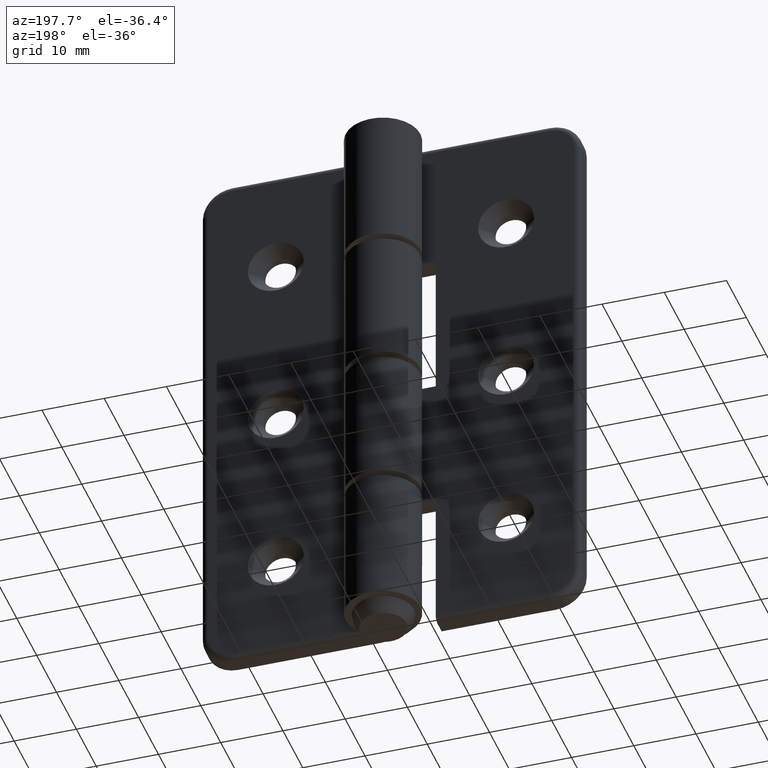
[diagram: clean part render]
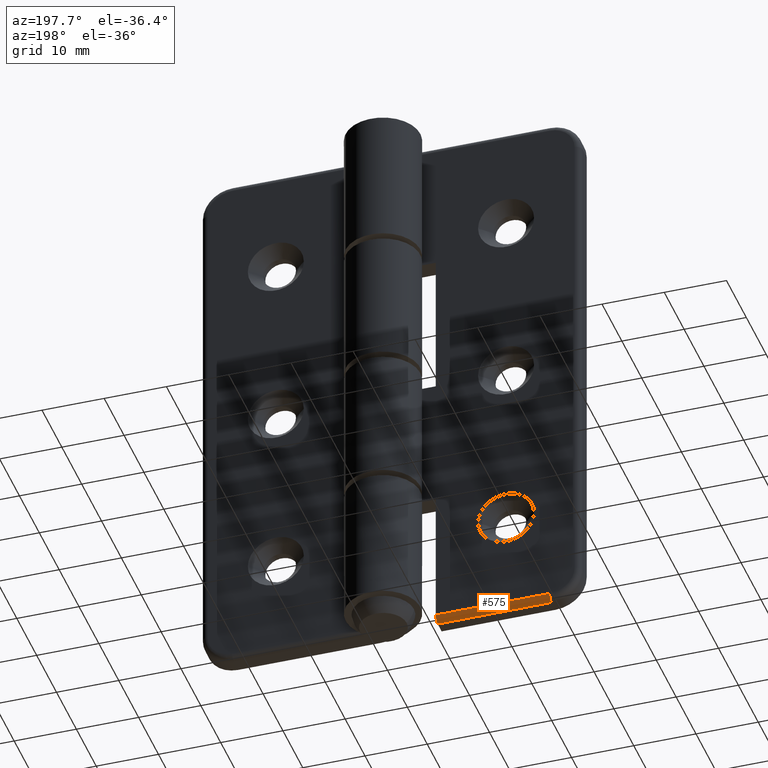
[diagram: same view with one face highlighted and labeled with its STEP entity id]
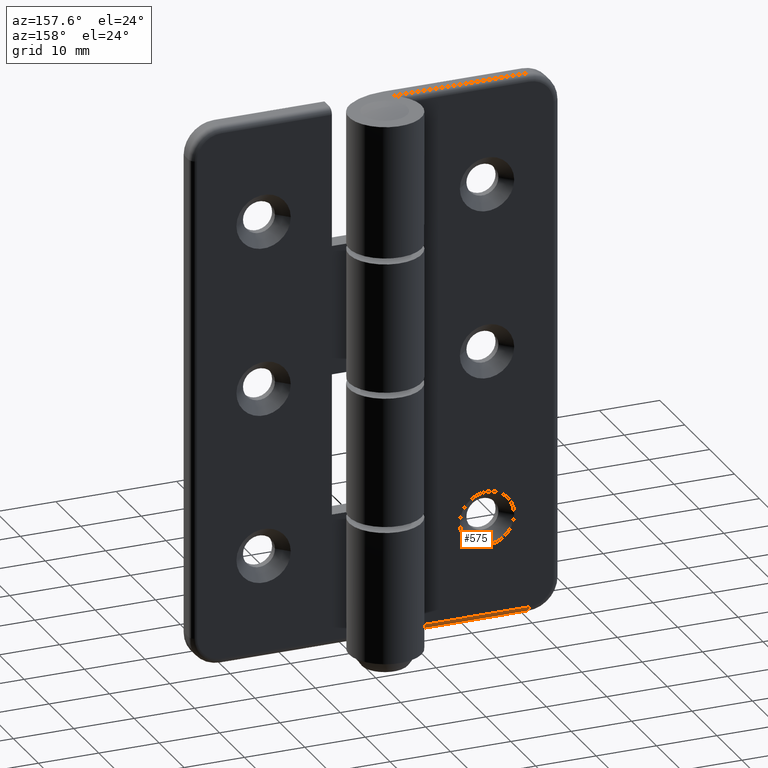
[diagram: same view with one face highlighted and labeled with its STEP entity id]
A machine part, auxiliary view. The second image highlights one B-rep face of the part: STEP entity #575.
A second angle (auxiliary view) of the same face is appended — the face is thin or edge-on in the first view.
In plain terms, the highlighted cylindrical surface (edge-blend (fillet) strip) has radius 1 mm, axis along (1, 0, 0).
Its self-contained STEP definition (entity closure, byte-faithful):
#66=LINE('',#963,#99);
#67=LINE('',#966,#100);
#99=VECTOR('',#765,18.3093034241836);
#100=VECTOR('',#768,18.3093034241836);
#123=CYLINDRICAL_SURFACE('',#632,1.);
#166=FACE_OUTER_BOUND('',#210,.T.);
#210=EDGE_LOOP('',(#465,#466,#467,#468));
#252=CIRCLE('',#615,1.);
#262=CIRCLE('',#633,1.);
#291=VERTEX_POINT('',#894);
#292=VERTEX_POINT('',#895);
#313=VERTEX_POINT('',#962);
#314=VERTEX_POINT('',#964);
#345=EDGE_CURVE('',#291,#292,#252,.T.);
#374=EDGE_CURVE('',#291,#313,#66,.T.);
#375=EDGE_CURVE('',#313,#314,#262,.T.);
#376=EDGE_CURVE('',#314,#292,#67,.T.);
#465=ORIENTED_EDGE('',*,*,#345,.F.);
#466=ORIENTED_EDGE('',*,*,#374,.T.);
#467=ORIENTED_EDGE('',*,*,#375,.T.);
#468=ORIENTED_EDGE('',*,*,#376,.T.);
#575=ADVANCED_FACE('',(#166),#123,.T.);
#615=AXIS2_PLACEMENT_3D('',#896,#711,#712);
#632=AXIS2_PLACEMENT_3D('',#961,#763,#764);
#633=AXIS2_PLACEMENT_3D('',#965,#766,#767);
#711=DIRECTION('center_axis',(-1.,4.44089209850063E-15,-4.44089209850064E-15));
#712=DIRECTION('ref_axis',(4.44089209850063E-15,1.,0.));
#763=DIRECTION('center_axis',(1.,0.,0.));
#764=DIRECTION('ref_axis',(0.,0.707106781186555,-0.70710678118654));
#765=DIRECTION('',(1.,0.,0.));
#766=DIRECTION('center_axis',(-1.,0.,3.86164530304402E-16));
#767=DIRECTION('ref_axis',(0.,0.707106781186555,-0.70710678118654));
#768=DIRECTION('',(-1.,0.,0.));
#894=CARTESIAN_POINT('',(-25.5,3.,-89.));
#895=CARTESIAN_POINT('',(-25.5,2.,-90.));
#896=CARTESIAN_POINT('Origin',(-25.5,2.,-89.));
#961=CARTESIAN_POINT('Origin',(-21.2417527111224,2.,-89.));
#962=CARTESIAN_POINT('',(-7.1906965758164,3.,-89.));
#963=CARTESIAN_POINT('',(-21.2417527111224,3.,-89.));
#964=CARTESIAN_POINT('',(-7.1906965758164,2.,-90.));
#965=CARTESIAN_POINT('Origin',(-7.1906965758164,2.,-89.));
#966=CARTESIAN_POINT('',(-21.2417527111224,2.,-90.));